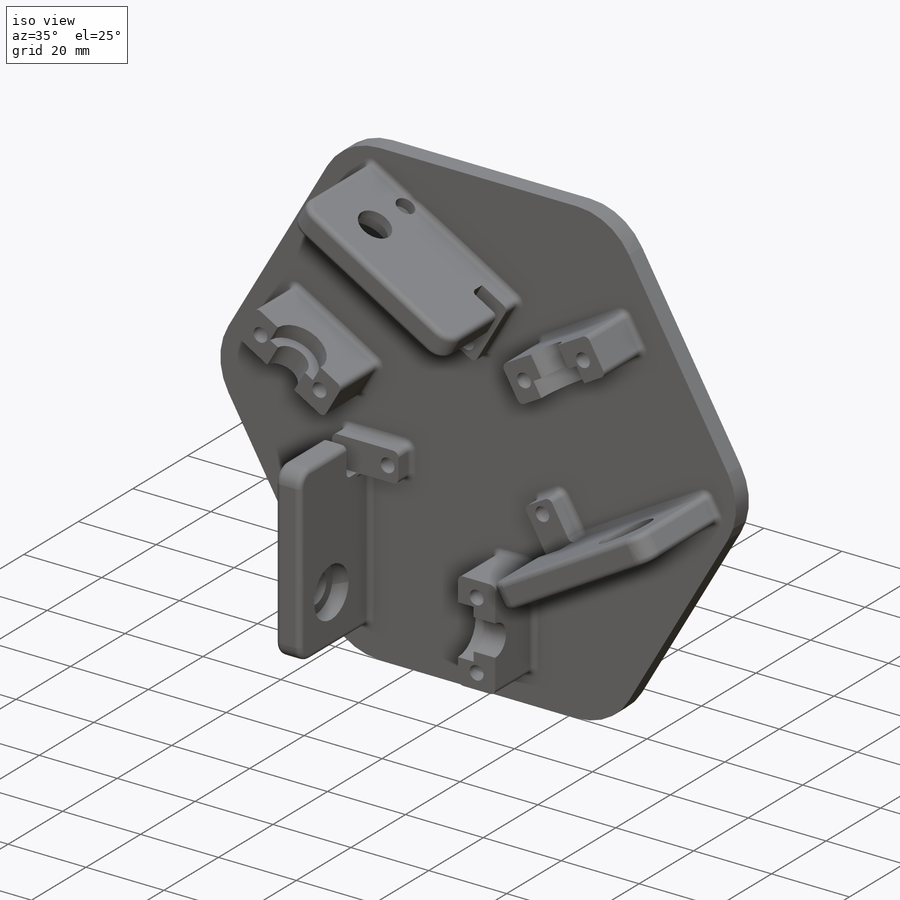
[diagram: iso view]
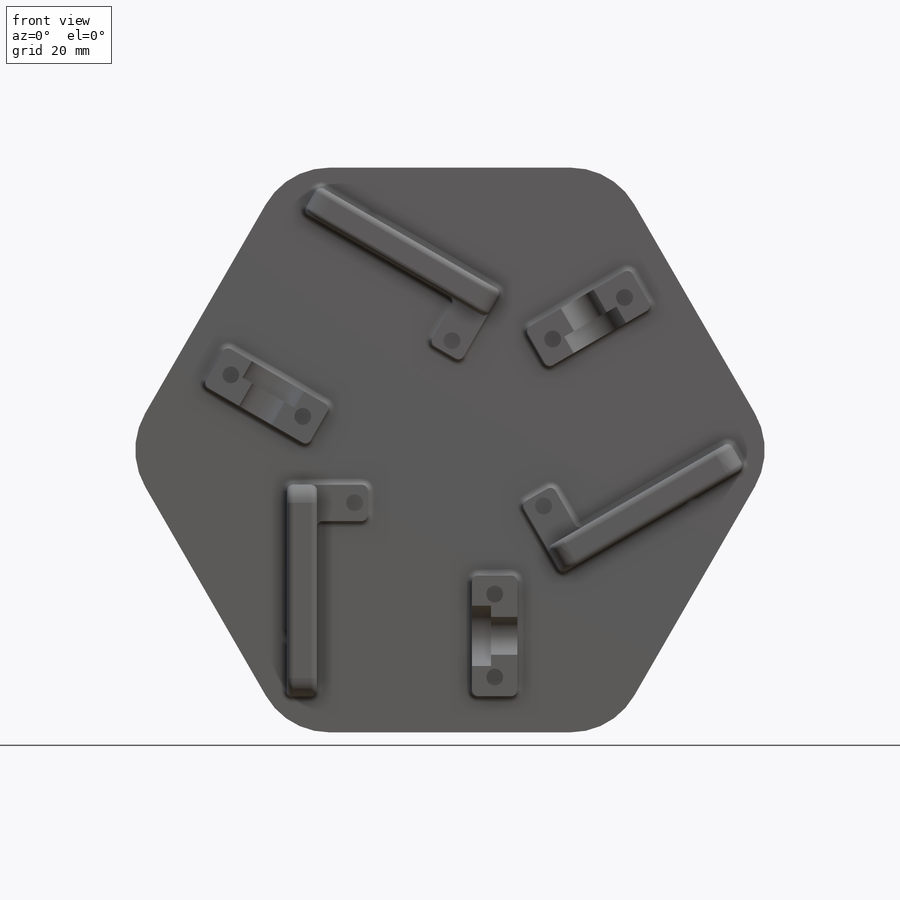
[diagram: front view]
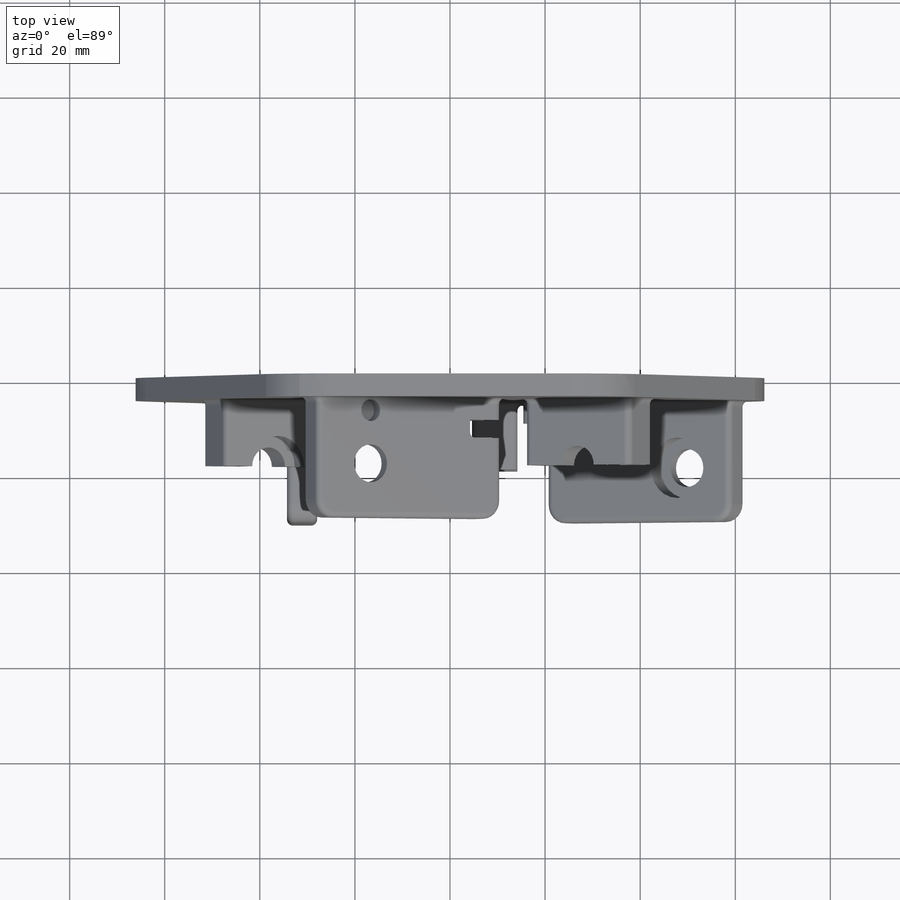
[diagram: top view]
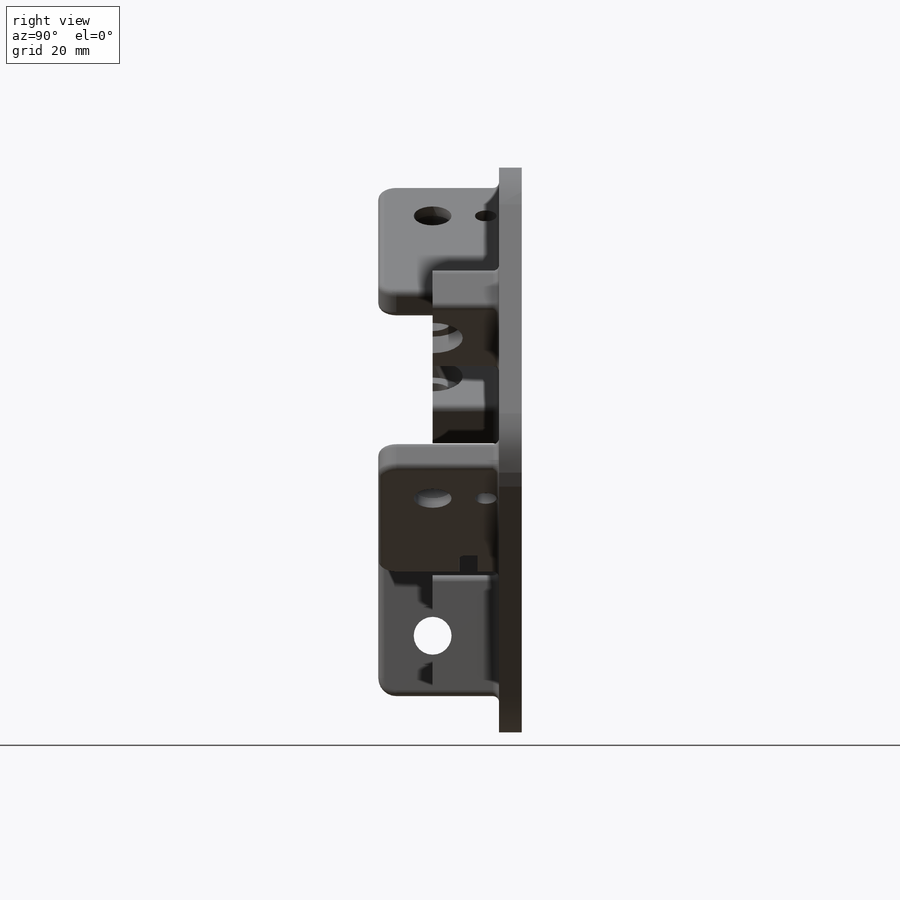
[diagram: right view]
SOLIDWORKS PART (.sldprt)
format: sldprt  version: not decoded by parser v0  size: 801,792 bytes
history: native  units: mm
features: sketch x11, cut_extrude x6, pattern_circular x6, extrude x4, fillet x2, material x1 (+13 scaffold rows collapsed)
feature tree (43):
  scaffold x13  (default folders/planes/origin — collapsed)
  material  "Material <not specified>"
  sketch  "Sketch2"  dims[c1.D1=12.7mm c1.D2=~59.39155mm c1.D3=~53.914758mm c2.D1=50.8mm c2.D3=44.45mm c2.D4=6.35mm c2.D5=8.255mm c2.D6=4.445mm]
  extrude  "Boss-Extrude1"  Depth=4.7625mm
  sketch  "Sketch4"  dims[D1=6.35mm D2=44.45mm D3=7.62mm D4=4.445mm D5=3.0]
  extrude  "Boss-Extrude3"  Depth=25.4mm
  sketch  "Sketch5"  dims[D1=9.525mm D2=25.4mm D3=7.62mm D4=32.5755mm D5=3.0]
  extrude  "Boss-Extrude4"  Depth=13.97mm
  sketch  "Sketch6"  dims[D1=7.62mm D2=10.668mm D3=3.0]
  extrude  "Boss-Extrude5"  Depth=4.572mm
  sketch  "3DSketch1"
  sketch  "Sketch17"  dims[D1=12.7mm D2=2.794mm]
  cut_extrude  "Cut-Extrude2"  Depth=2.54mm
  pattern_circular  "CirPattern5"  Count=3 Angle=360deg
  sketch  "Sketch18"  dims[c1.D1=~2.576705mm c1.D3=17.907mm c2.D1=2.794mm c2.D2=3.81mm c2.D3=5.08mm c2.D4=3.81mm c3.D3=5.08mm]
  cut_extrude  "Cut-Extrude3"  Depth=6.731mm
  pattern_circular  "CirPattern6"  Count=3 Angle=360deg
  sketch  "Sketch20"  dims[c1.D1=1.7907mm c1.D3=~3.273134mm c2.D1=3.9624mm c2.D2=4.7625mm c2.D3=4.7625mm c2.D4=3.9624mm]
  cut_extrude  "Cut-Extrude4"  Depth=9.525mm
  pattern_circular  "CirPattern7"  Count=3 Angle=360deg
  fillet  "Fillet22"  Radius=1.27mm
  fillet  "Fillet23"  Radius=3.81mm
  sketch  "Sketch25"  dims[D1=0.0mm]
  cut_extrude  "Cut-Extrude9"  [1 undecoded]
  sketch  "Sketch46"
  cut_extrude  "Cut-Extrude30"  Depth=36.576mm
  sketch  "Sketch48"
  cut_extrude  "Cut-Extrude31"  [1 undecoded]
  pattern_circular  "CirPattern11"  Count=3 Angle=360deg
  pattern_circular  "CirPattern12"  Count=3 Angle=360deg
  pattern_circular  "CirPattern13"  Count=3 Angle=360deg
decode coverage: 24 of 29 modeling features carry decoded parameters
note: ~ marks probable driven/reference dimensions
note: 2 parameter values undecoded
note: suppression state not decoded; provenance and decode notes live in map.json
